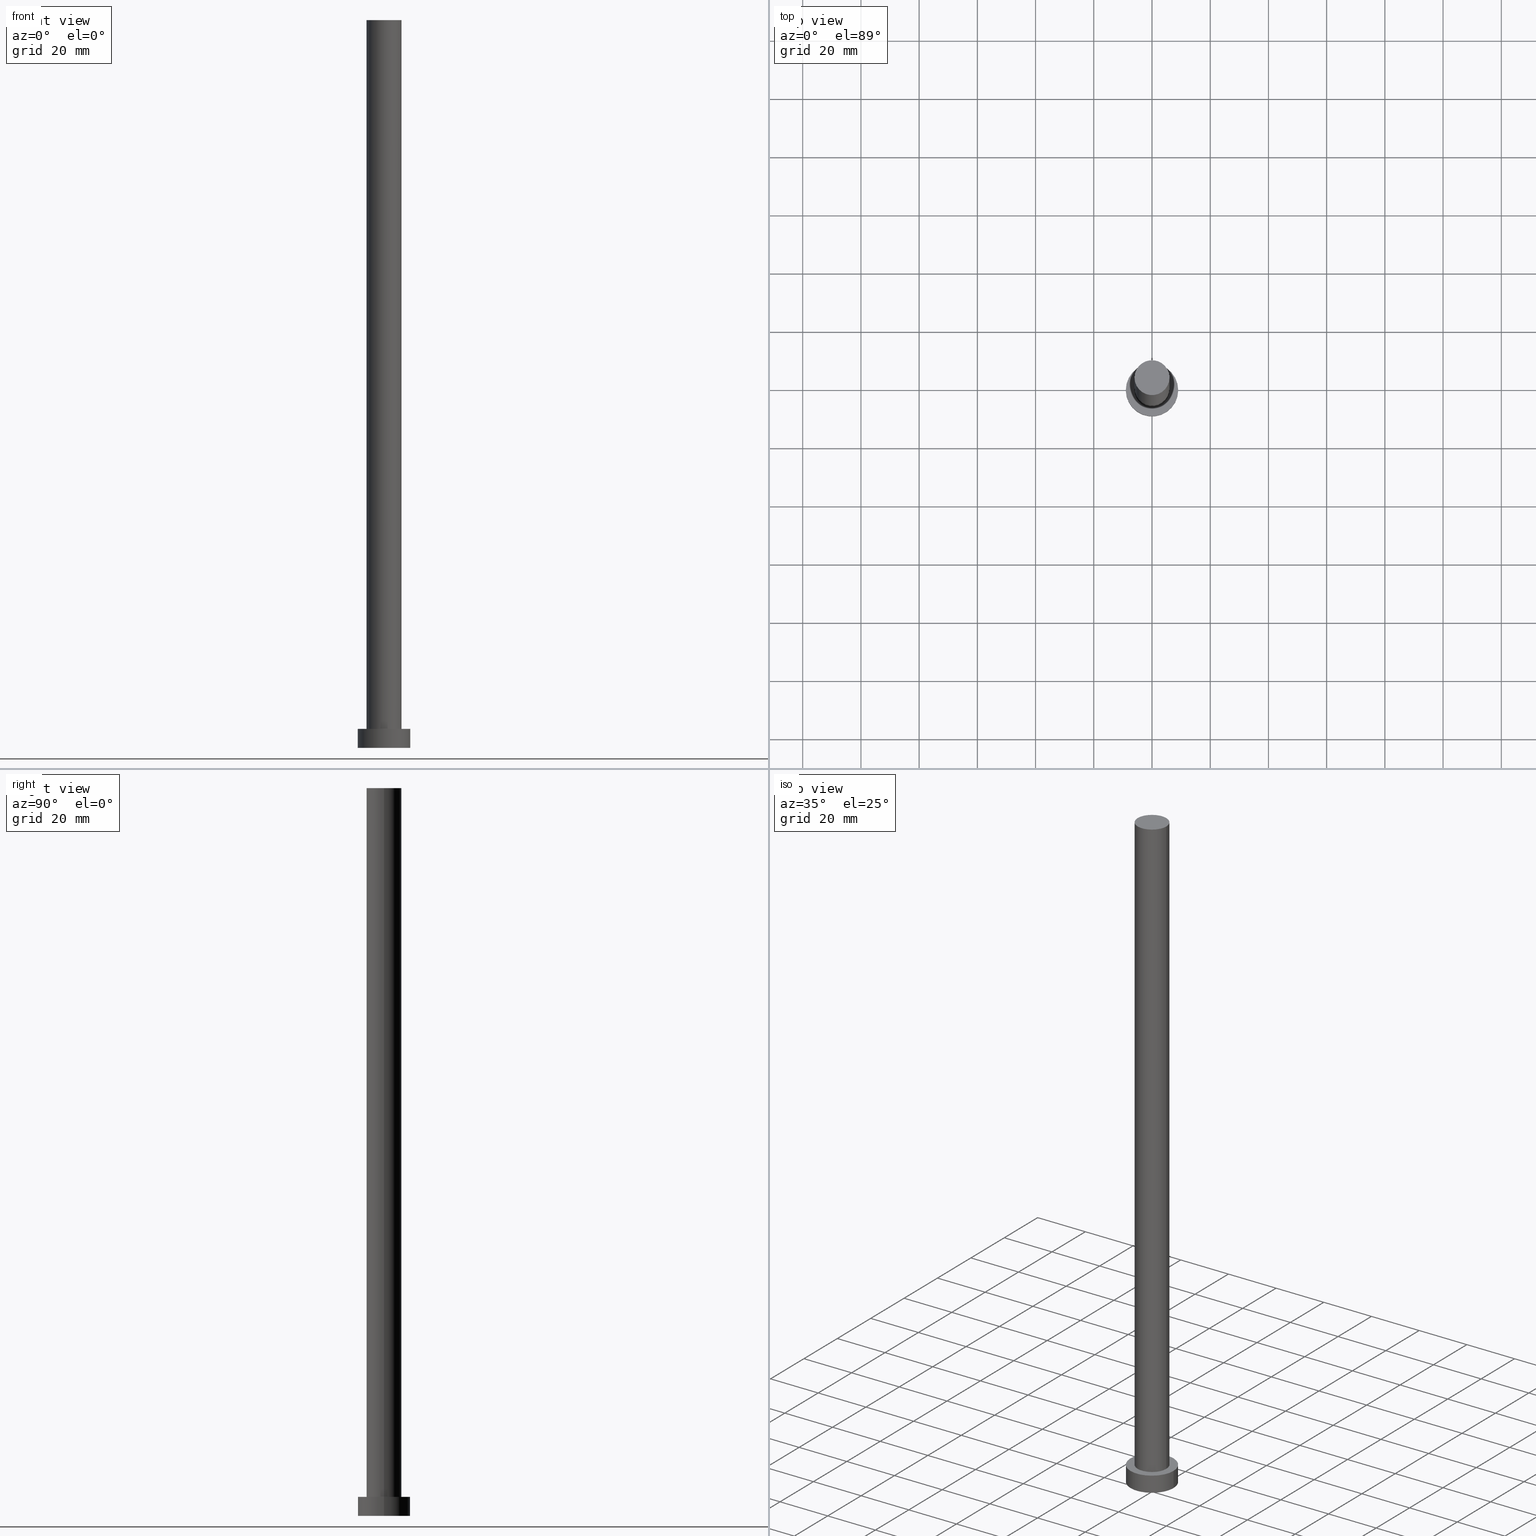
[diagram: canonical four-view strip — front | top / right | iso, engineering-drawing reading convention]
A machine part, canonical four-view strip (front | top / right | iso — engineering-drawing reading convention). The complete STEP part file that produces these views, byte-faithful:
ISO-10303-21;
HEADER;
FILE_DESCRIPTION (( 'STEP AP203' ),
    '1' );
FILE_NAME ('7e26.STEP',
    '2023-02-13T11:32:03',
    ( '' ),
    ( '' ),
    'SwSTEP 2.0',
    'SolidWorks 2019',
    '' );
FILE_SCHEMA (( 'CONFIG_CONTROL_DESIGN' ));
ENDSEC;

DATA;
#1 = ORGANIZATION ( 'NEUR�EN�', 'NEUR�EN�', '' ) ;
#2 = CARTESIAN_POINT ( 'NONE',  ( -9.000000000000000000, 0.000000000000000000, 6.500000000000000000 ) ) ;
#3 = AXIS2_PLACEMENT_3D ( 'NONE', #93, #228, #164 ) ;
#4 = CARTESIAN_POINT ( 'NONE',  ( 0.000000000000000000, 0.000000000000000000, 0.000000000000000000 ) ) ;
#5 = EDGE_CURVE ( 'NONE', #248, #198, #237, .T. ) ;
#6 = CC_DESIGN_PERSON_AND_ORGANIZATION_ASSIGNMENT ( #126, #27, ( #81 ) ) ;
#7 = VERTEX_POINT ( 'NONE', #41 ) ;
#8 = CALENDAR_DATE ( 2023, 13, 2 ) ;
#9 = DIRECTION ( 'NONE',  ( 0.000000000000000000, 0.000000000000000000, 1.000000000000000000 ) ) ;
#10 = VECTOR ( 'NONE', #89, 1000.000000000000000 ) ;
#11 =( LENGTH_UNIT ( ) NAMED_UNIT ( * ) SI_UNIT ( .MILLI., .METRE. ) );
#12 = CARTESIAN_POINT ( 'NONE',  ( 9.000000000000000000, 1.102182119232617517E-15, 6.500000000000000000 ) ) ;
#13 =( NAMED_UNIT ( * ) PLANE_ANGLE_UNIT ( ) SI_UNIT ( $, .RADIAN. ) );
#14 = EDGE_CURVE ( 'NONE', #98, #7, #116, .T. ) ;
#15 = CARTESIAN_POINT ( 'NONE',  ( 0.000000000000000000, 0.000000000000000000, 250.0000000000000000 ) ) ;
#16 = DIRECTION ( 'NONE',  ( 0.000000000000000000, 0.000000000000000000, 1.000000000000000000 ) ) ;
#17 = ORIENTED_EDGE ( 'NONE', *, *, #96, .T. ) ;
#18 = DATE_AND_TIME ( #111, #203 ) ;
#19 = CC_DESIGN_APPROVAL ( #120, ( #81 ) ) ;
#20 = EDGE_LOOP ( 'NONE', ( #160, #211, #165, #122 ) ) ;
#21 = SHAPE_DEFINITION_REPRESENTATION ( #59, #50 ) ;
#22 = CIRCLE ( 'NONE', #196, 6.000000000000000888 ) ;
#23 = APPROVAL_STATUS ( 'not_yet_approved' ) ;
#24 = ORIENTED_EDGE ( 'NONE', *, *, #139, .F. ) ;
#25 = ADVANCED_FACE ( 'NONE', ( #175 ), #107, .T. ) ;
#26 = CIRCLE ( 'NONE', #217, 9.000000000000000000 ) ;
#27 = PERSON_AND_ORGANIZATION_ROLE ( 'creator' ) ;
#28 = FACE_OUTER_BOUND ( 'NONE', #140, .T. ) ;
#29 = ORIENTED_EDGE ( 'NONE', *, *, #69, .T. ) ;
#30 = DATE_AND_TIME ( #233, #180 ) ;
#31 = DIRECTION ( 'NONE',  ( -0.000000000000000000, -0.000000000000000000, -1.000000000000000000 ) ) ;
#32 = COORDINATED_UNIVERSAL_TIME_OFFSET ( 1, 0, .AHEAD. ) ;
#33 = DIRECTION ( 'NONE',  ( -1.000000000000000000, 0.000000000000000000, 0.000000000000000000 ) ) ;
#34 = CYLINDRICAL_SURFACE ( 'NONE', #62, 9.000000000000000000 ) ;
#35 = FACE_OUTER_BOUND ( 'NONE', #70, .T. ) ;
#36 = UNCERTAINTY_MEASURE_WITH_UNIT (LENGTH_MEASURE( 1.000000000000000082E-05 ), #11, 'distance_accuracy_value', 'NONE');
#37 = LINE ( 'NONE', #195, #112 ) ;
#38 = CIRCLE ( 'NONE', #115, 6.000000000000000888 ) ;
#39 = DIRECTION ( 'NONE',  ( 0.000000000000000000, 0.000000000000000000, 1.000000000000000000 ) ) ;
#40 = DIRECTION ( 'NONE',  ( 0.000000000000000000, 0.000000000000000000, 1.000000000000000000 ) ) ;
#41 = CARTESIAN_POINT ( 'NONE',  ( 9.000000000000000000, 1.102182119232617517E-15, 0.000000000000000000 ) ) ;
#42 = PERSON_AND_ORGANIZATION ( #199, #1 ) ;
#43 = ADVANCED_FACE ( 'NONE', ( #49 ), #101, .T. ) ;
#44 = ORIENTED_EDGE ( 'NONE', *, *, #232, .F. ) ;
#45 = AXIS2_PLACEMENT_3D ( 'NONE', #4, #163, #245 ) ;
#46 = PLANE ( 'NONE',  #144 ) ;
#47 = LOCAL_TIME ( 12, 32, 3.000000000000000000, #184 ) ;
#48 = DIRECTION ( 'NONE',  ( 0.000000000000000000, 0.000000000000000000, 1.000000000000000000 ) ) ;
#49 = FACE_OUTER_BOUND ( 'NONE', #68, .T. ) ;
#50 = ADVANCED_BREP_SHAPE_REPRESENTATION ( '7e26', ( #159, #216 ), #75 ) ;
#51 = FACE_BOUND ( 'NONE', #235, .T. ) ;
#52 = PERSON_AND_ORGANIZATION_ROLE ( 'creator' ) ;
#53 = DIRECTION ( 'NONE',  ( 1.000000000000000000, 0.000000000000000000, 0.000000000000000000 ) ) ;
#54 = AXIS2_PLACEMENT_3D ( 'NONE', #15, #150, #236 ) ;
#55 = SECURITY_CLASSIFICATION_LEVEL ( 'unclassified' ) ;
#56 = PERSON_AND_ORGANIZATION ( #199, #1 ) ;
#57 = DIRECTION ( 'NONE',  ( -1.000000000000000000, 0.000000000000000000, 0.000000000000000000 ) ) ;
#58 = CLOSED_SHELL ( 'NONE', ( #193, #247, #43, #114, #151, #192, #25 ) ) ;
#59 = PRODUCT_DEFINITION_SHAPE ( 'NONE', 'NONE',  #213 ) ;
#60 = EDGE_CURVE ( 'NONE', #108, #241, #121, .T. ) ;
#61 = APPROVAL ( #187, 'NEUR�EN�' ) ;
#62 = AXIS2_PLACEMENT_3D ( 'NONE', #148, #234, #57 ) ;
#63 = LOCAL_TIME ( 12, 32, 3.000000000000000000, #212 ) ;
#64 =( NAMED_UNIT ( * ) SI_UNIT ( $, .STERADIAN. ) SOLID_ANGLE_UNIT ( ) );
#65 = MECHANICAL_CONTEXT ( 'NONE', #99, 'mechanical' ) ;
#66 = ORIENTED_EDGE ( 'NONE', *, *, #83, .F. ) ;
#67 = AXIS2_PLACEMENT_3D ( 'NONE', #71, #231, #92 ) ;
#68 = EDGE_LOOP ( 'NONE', ( #24, #186, #174, #135 ) ) ;
#69 = EDGE_CURVE ( 'NONE', #198, #248, #86, .T. ) ;
#70 = EDGE_LOOP ( 'NONE', ( #44, #219, #17, #168 ) ) ;
#71 = CARTESIAN_POINT ( 'NONE',  ( 0.000000000000000000, 0.000000000000000000, 6.500000000000000000 ) ) ;
#72 = PERSON_AND_ORGANIZATION_ROLE ( 'design_supplier' ) ;
#73 = EDGE_LOOP ( 'NONE', ( #128, #182 ) ) ;
#74 = APPLICATION_PROTOCOL_DEFINITION ( 'international standard', 'config_control_design', 1994, #230 ) ;
#75 =( GEOMETRIC_REPRESENTATION_CONTEXT ( 3 ) GLOBAL_UNCERTAINTY_ASSIGNED_CONTEXT ( ( #36 ) ) GLOBAL_UNIT_ASSIGNED_CONTEXT ( ( #11, #13, #64 ) ) REPRESENTATION_CONTEXT ( 'NONE', 'WORKASPACE' ) );
#76 = COORDINATED_UNIVERSAL_TIME_OFFSET ( 1, 0, .AHEAD. ) ;
#77 = DIRECTION ( 'NONE',  ( 1.000000000000000000, 0.000000000000000000, 0.000000000000000000 ) ) ;
#78 = ORIENTED_EDGE ( 'NONE', *, *, #60, .F. ) ;
#79 = COORDINATED_UNIVERSAL_TIME_OFFSET ( 1, 0, .AHEAD. ) ;
#80 = DIRECTION ( 'NONE',  ( 1.000000000000000000, 0.000000000000000000, 0.000000000000000000 ) ) ;
#81 = PRODUCT_DEFINITION_FORMATION_WITH_SPECIFIED_SOURCE ( 'LIBOVOLN�', '', #250, .NOT_KNOWN. ) ;
#82 = AXIS2_PLACEMENT_3D ( 'NONE', #246, #31, #145 ) ;
#83 = EDGE_CURVE ( 'NONE', #7, #98, #26, .T. ) ;
#84 = DIRECTION ( 'NONE',  ( 1.000000000000000000, 0.000000000000000000, 0.000000000000000000 ) ) ;
#85 = CARTESIAN_POINT ( 'NONE',  ( 0.000000000000000000, 0.000000000000000000, 250.0000000000000000 ) ) ;
#86 = CIRCLE ( 'NONE', #102, 9.000000000000000000 ) ;
#87 = CARTESIAN_POINT ( 'NONE',  ( 0.000000000000000000, 0.000000000000000000, 6.500000000000000000 ) ) ;
#88 = CALENDAR_DATE ( 2023, 13, 2 ) ;
#89 = DIRECTION ( 'NONE',  ( -0.000000000000000000, -0.000000000000000000, -1.000000000000000000 ) ) ;
#90 = VERTEX_POINT ( 'NONE', #226 ) ;
#91 = PERSON_AND_ORGANIZATION_ROLE ( 'design_owner' ) ;
#92 = DIRECTION ( 'NONE',  ( 1.000000000000000000, 0.000000000000000000, 0.000000000000000000 ) ) ;
#93 = CARTESIAN_POINT ( 'NONE',  ( 0.000000000000000000, 0.000000000000000000, 250.0000000000000000 ) ) ;
#94 = DIRECTION ( 'NONE',  ( -0.000000000000000000, -0.000000000000000000, -1.000000000000000000 ) ) ;
#95 = LOCAL_TIME ( 12, 32, 3.000000000000000000, #79 ) ;
#96 = EDGE_CURVE ( 'NONE', #225, #90, #179, .T. ) ;
#97 = CARTESIAN_POINT ( 'NONE',  ( 6.000000000000000888, 7.347880794884120722E-16, 6.500000000000000000 ) ) ;
#98 = VERTEX_POINT ( 'NONE', #138 ) ;
#99 = APPLICATION_CONTEXT ( 'configuration controlled 3d designs of mechanical parts and assemblies' ) ;
#100 = DIRECTION ( 'NONE',  ( 1.000000000000000000, 0.000000000000000000, 0.000000000000000000 ) ) ;
#101 = CYLINDRICAL_SURFACE ( 'NONE', #82, 9.000000000000000000 ) ;
#102 = AXIS2_PLACEMENT_3D ( 'NONE', #242, #9, #53 ) ;
#103 = APPROVAL_ROLE ( '' ) ;
#104 = DIRECTION ( 'NONE',  ( 0.000000000000000000, 0.000000000000000000, 1.000000000000000000 ) ) ;
#105 = PERSON_AND_ORGANIZATION ( #199, #1 ) ;
#106 = APPROVAL ( #224, 'NEUR�EN�' ) ;
#107 = PLANE ( 'NONE',  #3 ) ;
#108 = VERTEX_POINT ( 'NONE', #162 ) ;
#109 = APPROVAL_ROLE ( '' ) ;
#110 = ORIENTED_EDGE ( 'NONE', *, *, #254, .T. ) ;
#111 = CALENDAR_DATE ( 2023, 13, 2 ) ;
#112 = VECTOR ( 'NONE', #94, 1000.000000000000000 ) ;
#113 = CYLINDRICAL_SURFACE ( 'NONE', #54, 6.000000000000000888 ) ;
#114 = ADVANCED_FACE ( 'NONE', ( #51, #167 ), #46, .T. ) ;
#115 = AXIS2_PLACEMENT_3D ( 'NONE', #191, #173, #84 ) ;
#116 = CIRCLE ( 'NONE', #194, 9.000000000000000000 ) ;
#117 = CARTESIAN_POINT ( 'NONE',  ( 0.000000000000000000, 0.000000000000000000, 0.000000000000000000 ) ) ;
#118 = CARTESIAN_POINT ( 'NONE',  ( 0.000000000000000000, 0.000000000000000000, 0.000000000000000000 ) ) ;
#119 = CC_DESIGN_PERSON_AND_ORGANIZATION_ASSIGNMENT ( #204, #52, ( #213 ) ) ;
#120 = APPROVAL ( #23, 'NEUR�EN�' ) ;
#121 = CIRCLE ( 'NONE', #154, 6.000000000000000888 ) ;
#122 = ORIENTED_EDGE ( 'NONE', *, *, #132, .F. ) ;
#123 = CC_DESIGN_APPROVAL ( #61, ( #213 ) ) ;
#124 = DIRECTION ( 'NONE',  ( -0.000000000000000000, -0.000000000000000000, -1.000000000000000000 ) ) ;
#125 = APPROVAL_ROLE ( '' ) ;
#126 = PERSON_AND_ORGANIZATION ( #199, #1 ) ;
#127 = CARTESIAN_POINT ( 'NONE',  ( 0.000000000000000000, 0.000000000000000000, 6.500000000000000000 ) ) ;
#128 = ORIENTED_EDGE ( 'NONE', *, *, #60, .T. ) ;
#129 = CARTESIAN_POINT ( 'NONE',  ( 9.000000000000000000, 1.102182119232617517E-15, 6.500000000000000000 ) ) ;
#130 = CARTESIAN_POINT ( 'NONE',  ( -9.000000000000000000, 0.000000000000000000, 6.500000000000000000 ) ) ;
#131 = DIRECTION ( 'NONE',  ( -0.000000000000000000, -0.000000000000000000, -1.000000000000000000 ) ) ;
#132 = EDGE_CURVE ( 'NONE', #198, #98, #181, .T. ) ;
#133 = AXIS2_PLACEMENT_3D ( 'NONE', #252, #131, #33 ) ;
#134 = EDGE_LOOP ( 'NONE', ( #202, #78, #149, #110 ) ) ;
#135 = ORIENTED_EDGE ( 'NONE', *, *, #14, .T. ) ;
#136 = APPROVAL_DATE_TIME ( #166, #106 ) ;
#137 = PERSON_AND_ORGANIZATION ( #199, #1 ) ;
#138 = CARTESIAN_POINT ( 'NONE',  ( -9.000000000000000000, 0.000000000000000000, 0.000000000000000000 ) ) ;
#139 = EDGE_CURVE ( 'NONE', #248, #7, #244, .T. ) ;
#140 = EDGE_LOOP ( 'NONE', ( #208, #66 ) ) ;
#141 = CC_DESIGN_PERSON_AND_ORGANIZATION_ASSIGNMENT ( #56, #91, ( #250 ) ) ;
#142 = APPROVAL_DATE_TIME ( #209, #120 ) ;
#143 = CARTESIAN_POINT ( 'NONE',  ( 0.000000000000000000, 0.000000000000000000, 0.000000000000000000 ) ) ;
#144 = AXIS2_PLACEMENT_3D ( 'NONE', #127, #210, #205 ) ;
#145 = DIRECTION ( 'NONE',  ( -1.000000000000000000, 0.000000000000000000, 0.000000000000000000 ) ) ;
#146 = DATE_TIME_ROLE ( 'creation_date' ) ;
#147 = APPROVAL_PERSON_ORGANIZATION ( #229, #61, #125 ) ;
#148 = CARTESIAN_POINT ( 'NONE',  ( 0.000000000000000000, 0.000000000000000000, 6.500000000000000000 ) ) ;
#149 = ORIENTED_EDGE ( 'NONE', *, *, #240, .T. ) ;
#150 = DIRECTION ( 'NONE',  ( -0.000000000000000000, -0.000000000000000000, -1.000000000000000000 ) ) ;
#151 = ADVANCED_FACE ( 'NONE', ( #28 ), #185, .F. ) ;
#152 = CC_DESIGN_DATE_AND_TIME_ASSIGNMENT ( #30, #146, ( #213 ) ) ;
#153 = DIRECTION ( 'NONE',  ( 0.000000000000000000, 0.000000000000000000, 1.000000000000000000 ) ) ;
#154 = AXIS2_PLACEMENT_3D ( 'NONE', #207, #104, #77 ) ;
#155 = VECTOR ( 'NONE', #124, 1000.000000000000000 ) ;
#156 = APPLICATION_PROTOCOL_DEFINITION ( 'international standard', 'config_control_design', 1994, #99 ) ;
#157 = CC_DESIGN_APPROVAL ( #106, ( #158 ) ) ;
#158 = SECURITY_CLASSIFICATION ( '', '', #55 ) ;
#159 = MANIFOLD_SOLID_BREP ( 'P�idat vysunut�m3', #58 ) ;
#160 = ORIENTED_EDGE ( 'NONE', *, *, #5, .F. ) ;
#161 = DIRECTION ( 'NONE',  ( 1.000000000000000000, 0.000000000000000000, 0.000000000000000000 ) ) ;
#162 = CARTESIAN_POINT ( 'NONE',  ( -6.000000000000000888, 0.000000000000000000, 250.0000000000000000 ) ) ;
#163 = DIRECTION ( 'NONE',  ( 0.000000000000000000, 0.000000000000000000, 1.000000000000000000 ) ) ;
#164 = DIRECTION ( 'NONE',  ( 1.000000000000000000, 0.000000000000000000, -0.000000000000000000 ) ) ;
#165 = ORIENTED_EDGE ( 'NONE', *, *, #83, .T. ) ;
#166 = DATE_AND_TIME ( #249, #47 ) ;
#167 = FACE_OUTER_BOUND ( 'NONE', #223, .T. ) ;
#168 = ORIENTED_EDGE ( 'NONE', *, *, #240, .F. ) ;
#169 = APPROVAL_DATE_TIME ( #227, #61 ) ;
#170 = FACE_OUTER_BOUND ( 'NONE', #20, .T. ) ;
#171 = APPROVAL_PERSON_ORGANIZATION ( #206, #120, #103 ) ;
#172 = LINE ( 'NONE', #251, #201 ) ;
#173 = DIRECTION ( 'NONE',  ( 0.000000000000000000, 0.000000000000000000, 1.000000000000000000 ) ) ;
#174 = ORIENTED_EDGE ( 'NONE', *, *, #132, .T. ) ;
#175 = FACE_OUTER_BOUND ( 'NONE', #73, .T. ) ;
#176 = DIRECTION ( 'NONE',  ( 1.000000000000000000, 0.000000000000000000, 0.000000000000000000 ) ) ;
#177 = APPROVAL_PERSON_ORGANIZATION ( #42, #106, #109 ) ;
#178 = ORIENTED_EDGE ( 'NONE', *, *, #96, .F. ) ;
#179 = CIRCLE ( 'NONE', #67, 6.000000000000000888 ) ;
#180 = LOCAL_TIME ( 12, 32, 3.000000000000000000, #76 ) ;
#181 = LINE ( 'NONE', #2, #10 ) ;
#182 = ORIENTED_EDGE ( 'NONE', *, *, #232, .T. ) ;
#183 = EDGE_CURVE ( 'NONE', #241, #225, #172, .T. ) ;
#184 = COORDINATED_UNIVERSAL_TIME_OFFSET ( 1, 0, .AHEAD. ) ;
#185 = PLANE ( 'NONE',  #45 ) ;
#186 = ORIENTED_EDGE ( 'NONE', *, *, #69, .F. ) ;
#187 = APPROVAL_STATUS ( 'not_yet_approved' ) ;
#188 = ORIENTED_EDGE ( 'NONE', *, *, #5, .T. ) ;
#189 = CARTESIAN_POINT ( 'NONE',  ( 6.000000000000000888, 7.347880794884120722E-16, 250.0000000000000000 ) ) ;
#190 = CC_DESIGN_SECURITY_CLASSIFICATION ( #158, ( #81 ) ) ;
#191 = CARTESIAN_POINT ( 'NONE',  ( 0.000000000000000000, 0.000000000000000000, 6.500000000000000000 ) ) ;
#192 = ADVANCED_FACE ( 'NONE', ( #238 ), #218, .T. ) ;
#193 = ADVANCED_FACE ( 'NONE', ( #35 ), #113, .T. ) ;
#194 = AXIS2_PLACEMENT_3D ( 'NONE', #118, #16, #100 ) ;
#195 = CARTESIAN_POINT ( 'NONE',  ( -6.000000000000000888, 0.000000000000000000, 250.0000000000000000 ) ) ;
#196 = AXIS2_PLACEMENT_3D ( 'NONE', #85, #153, #80 ) ;
#197 = DIRECTION ( 'NONE',  ( 1.000000000000000000, 0.000000000000000000, 0.000000000000000000 ) ) ;
#198 = VERTEX_POINT ( 'NONE', #130 ) ;
#199 = PERSON ( 'NEUR�EN�', 'NEUR�EN�', 'NEUR�EN�', ('NEUR�EN�'), ('NEUR�EN�'), ('NEUR�EN�') ) ;
#200 = PRODUCT_RELATED_PRODUCT_CATEGORY ( 'detail', '', ( #250 ) ) ;
#201 = VECTOR ( 'NONE', #253, 1000.000000000000000 ) ;
#202 = ORIENTED_EDGE ( 'NONE', *, *, #183, .F. ) ;
#203 = LOCAL_TIME ( 12, 32, 3.000000000000000000, #32 ) ;
#204 = PERSON_AND_ORGANIZATION ( #199, #1 ) ;
#205 = DIRECTION ( 'NONE',  ( 1.000000000000000000, 0.000000000000000000, -0.000000000000000000 ) ) ;
#206 = PERSON_AND_ORGANIZATION ( #199, #1 ) ;
#207 = CARTESIAN_POINT ( 'NONE',  ( 0.000000000000000000, 0.000000000000000000, 250.0000000000000000 ) ) ;
#208 = ORIENTED_EDGE ( 'NONE', *, *, #14, .F. ) ;
#209 = DATE_AND_TIME ( #88, #63 ) ;
#210 = DIRECTION ( 'NONE',  ( 0.000000000000000000, 0.000000000000000000, 1.000000000000000000 ) ) ;
#211 = ORIENTED_EDGE ( 'NONE', *, *, #139, .T. ) ;
#212 = COORDINATED_UNIVERSAL_TIME_OFFSET ( 1, 0, .AHEAD. ) ;
#213 = PRODUCT_DEFINITION ( 'NEZN�M�', '', #81, #220 ) ;
#214 = PERSON_AND_ORGANIZATION_ROLE ( 'classification_officer' ) ;
#215 = CC_DESIGN_PERSON_AND_ORGANIZATION_ASSIGNMENT ( #137, #214, ( #158 ) ) ;
#216 = AXIS2_PLACEMENT_3D ( 'NONE', #117, #40, #176 ) ;
#217 = AXIS2_PLACEMENT_3D ( 'NONE', #143, #48, #161 ) ;
#218 = CYLINDRICAL_SURFACE ( 'NONE', #133, 6.000000000000000888 ) ;
#219 = ORIENTED_EDGE ( 'NONE', *, *, #183, .T. ) ;
#220 = DESIGN_CONTEXT ( 'detailed design', #230, 'design' ) ;
#221 = ORIENTED_EDGE ( 'NONE', *, *, #254, .F. ) ;
#222 = CC_DESIGN_PERSON_AND_ORGANIZATION_ASSIGNMENT ( #105, #72, ( #81 ) ) ;
#223 = EDGE_LOOP ( 'NONE', ( #29, #188 ) ) ;
#224 = APPROVAL_STATUS ( 'not_yet_approved' ) ;
#225 = VERTEX_POINT ( 'NONE', #97 ) ;
#226 = CARTESIAN_POINT ( 'NONE',  ( -6.000000000000000888, 0.000000000000000000, 6.500000000000000000 ) ) ;
#227 = DATE_AND_TIME ( #8, #95 ) ;
#228 = DIRECTION ( 'NONE',  ( 0.000000000000000000, 0.000000000000000000, 1.000000000000000000 ) ) ;
#229 = PERSON_AND_ORGANIZATION ( #199, #1 ) ;
#230 = APPLICATION_CONTEXT ( 'configuration controlled 3d designs of mechanical parts and assemblies' ) ;
#231 = DIRECTION ( 'NONE',  ( 0.000000000000000000, 0.000000000000000000, 1.000000000000000000 ) ) ;
#232 = EDGE_CURVE ( 'NONE', #241, #108, #22, .T. ) ;
#233 = CALENDAR_DATE ( 2023, 13, 2 ) ;
#234 = DIRECTION ( 'NONE',  ( -0.000000000000000000, -0.000000000000000000, -1.000000000000000000 ) ) ;
#235 = EDGE_LOOP ( 'NONE', ( #221, #178 ) ) ;
#236 = DIRECTION ( 'NONE',  ( -1.000000000000000000, 0.000000000000000000, 0.000000000000000000 ) ) ;
#237 = CIRCLE ( 'NONE', #243, 9.000000000000000000 ) ;
#238 = FACE_OUTER_BOUND ( 'NONE', #134, .T. ) ;
#239 = CC_DESIGN_DATE_AND_TIME_ASSIGNMENT ( #18, #255, ( #158 ) ) ;
#240 = EDGE_CURVE ( 'NONE', #108, #90, #37, .T. ) ;
#241 = VERTEX_POINT ( 'NONE', #189 ) ;
#242 = CARTESIAN_POINT ( 'NONE',  ( 0.000000000000000000, 0.000000000000000000, 6.500000000000000000 ) ) ;
#243 = AXIS2_PLACEMENT_3D ( 'NONE', #87, #39, #197 ) ;
#244 = LINE ( 'NONE', #129, #155 ) ;
#245 = DIRECTION ( 'NONE',  ( 1.000000000000000000, 0.000000000000000000, -0.000000000000000000 ) ) ;
#246 = CARTESIAN_POINT ( 'NONE',  ( 0.000000000000000000, 0.000000000000000000, 6.500000000000000000 ) ) ;
#247 = ADVANCED_FACE ( 'NONE', ( #170 ), #34, .T. ) ;
#248 = VERTEX_POINT ( 'NONE', #12 ) ;
#249 = CALENDAR_DATE ( 2023, 13, 2 ) ;
#250 = PRODUCT ( '7e26', '7e26', '', ( #65 ) ) ;
#251 = CARTESIAN_POINT ( 'NONE',  ( 6.000000000000000888, 7.347880794884120722E-16, 250.0000000000000000 ) ) ;
#252 = CARTESIAN_POINT ( 'NONE',  ( 0.000000000000000000, 0.000000000000000000, 250.0000000000000000 ) ) ;
#253 = DIRECTION ( 'NONE',  ( -0.000000000000000000, -0.000000000000000000, -1.000000000000000000 ) ) ;
#254 = EDGE_CURVE ( 'NONE', #90, #225, #38, .T. ) ;
#255 = DATE_TIME_ROLE ( 'classification_date' ) ;
ENDSEC;
END-ISO-10303-21;
